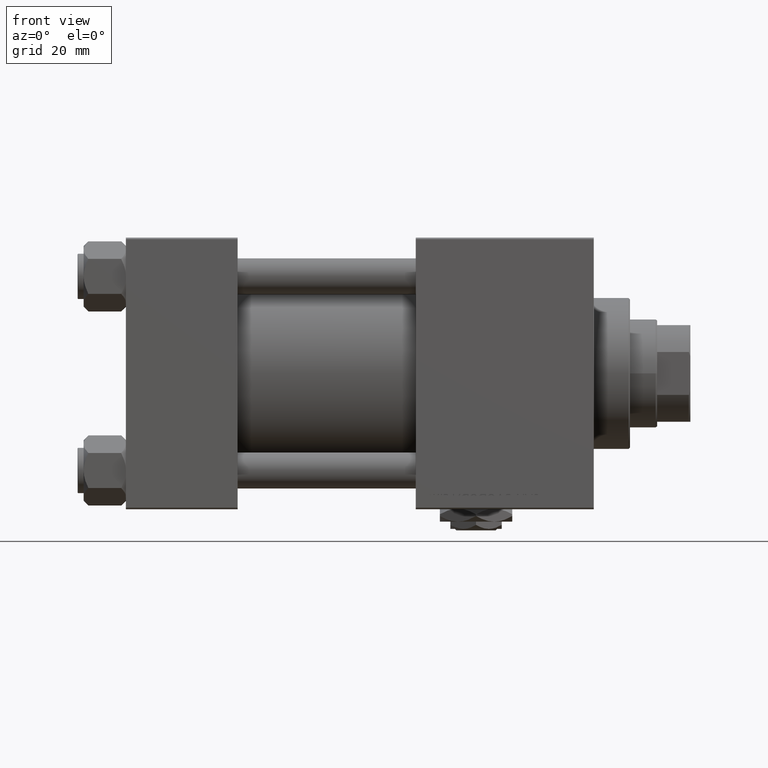
[diagram: clean part render]
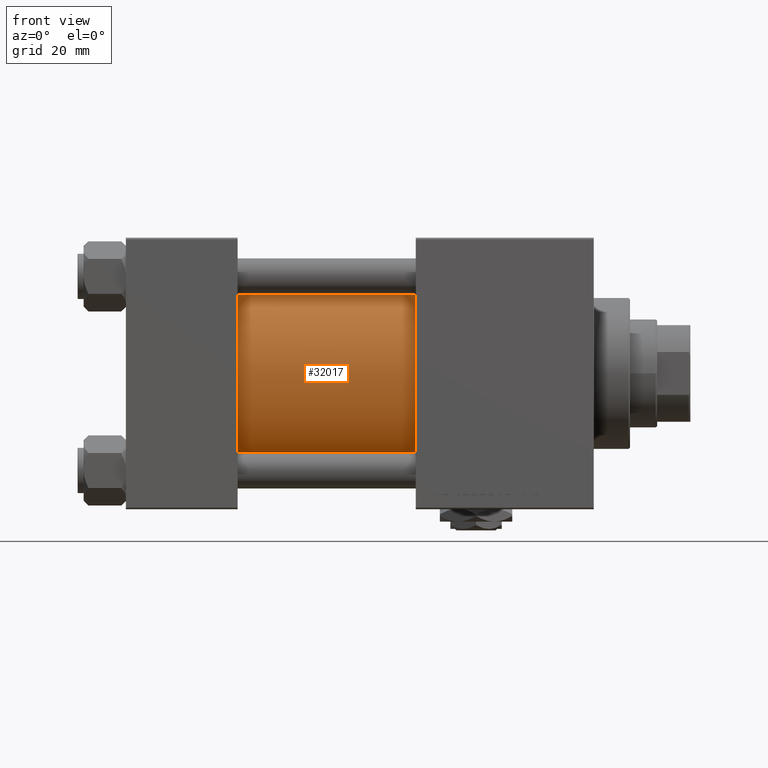
[diagram: same view with one face highlighted and labeled with its STEP entity id]
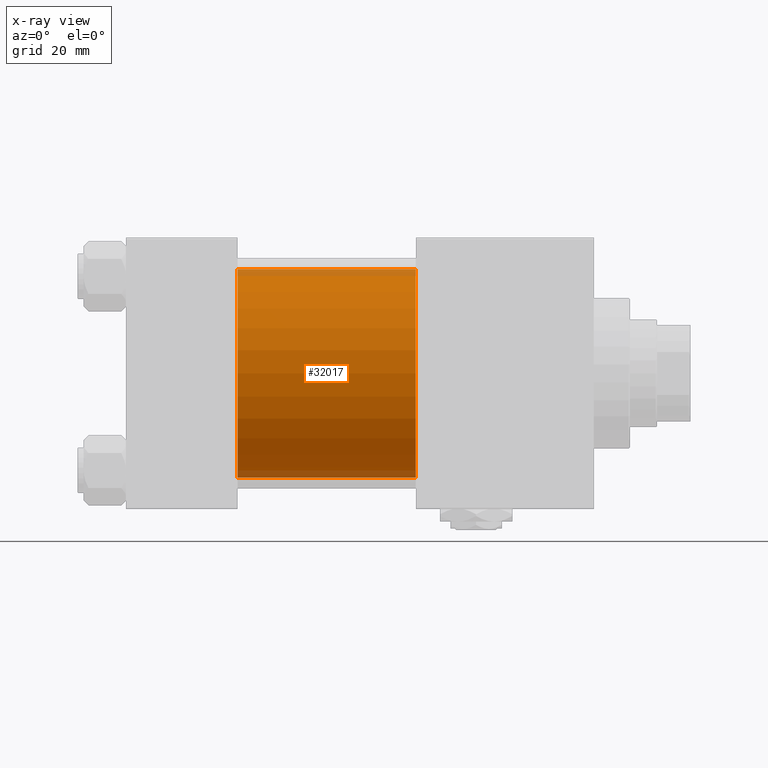
[diagram: x-ray of the same camera — body ghosted, the highlighted face saturated]
A machine part, front view. The second image highlights one B-rep face of the part: STEP entity #32017.
The next image is the same camera in x-ray: the body ghosted, the highlighted face saturated — about 7% of this face is hidden behind the body in this view.
In plain terms, the highlighted cylindrical surface (partial cylindrical patch) has radius 34.5 mm, axis along (-1, -0, -0).
Its self-contained STEP definition (entity closure, byte-faithful):
#1305 = EDGE_CURVE ( 'NONE', #40855, #13372, #7257, .T. ) ;
#2070 = AXIS2_PLACEMENT_3D ( 'NONE', #20995, #9957, #45665 ) ;
#2712 = CARTESIAN_POINT ( 'NONE',  ( 37.00000000000000000, 1.622946243093158675E-15, -34.50000000000000000 ) ) ;
#3217 = EDGE_CURVE ( 'NONE', #48868, #40855, #51545, .T. ) ;
#3789 = CARTESIAN_POINT ( 'NONE',  ( 96.00000000000000000, -2.602085213965210642E-15, 0.000000000000000000 ) ) ;
#5261 = CARTESIAN_POINT ( 'NONE',  ( 37.00000000000000000, -2.602085213965210642E-15, 0.000000000000000000 ) ) ;
#6742 = AXIS2_PLACEMENT_3D ( 'NONE', #5261, #45694, #10239 ) ;
#7257 = LINE ( 'NONE', #31407, #20417 ) ;
#7258 = CARTESIAN_POINT ( 'NONE',  ( 37.00000000000000000, -2.602085213965210642E-15, 34.50000000000000000 ) ) ;
#9187 = FACE_OUTER_BOUND ( 'NONE', #41483, .T. ) ;
#9957 = DIRECTION ( 'NONE',  ( -1.000000000000000000, -0.000000000000000000, -0.000000000000000000 ) ) ;
#10239 = DIRECTION ( 'NONE',  ( 0.000000000000000000, 0.000000000000000000, 1.000000000000000000 ) ) ;
#12954 = AXIS2_PLACEMENT_3D ( 'NONE', #3789, #51855, #47907 ) ;
#13372 = VERTEX_POINT ( 'NONE', #2712 ) ;
#15892 = ORIENTED_EDGE ( 'NONE', *, *, #1305, .F. ) ;
#18504 = CARTESIAN_POINT ( 'NONE',  ( 96.00000000000000000, -2.602085213965210642E-15, 34.50000000000000000 ) ) ;
#19349 = CIRCLE ( 'NONE', #6742, 34.50000000000000000 ) ;
#19938 = LINE ( 'NONE', #35436, #47398 ) ;
#20417 = VECTOR ( 'NONE', #51116, 1000.000000000000000 ) ;
#20995 = CARTESIAN_POINT ( 'NONE',  ( 96.00000000000000000, -2.602085213965210642E-15, 0.000000000000000000 ) ) ;
#23112 = ORIENTED_EDGE ( 'NONE', *, *, #48611, .T. ) ;
#25009 = VERTEX_POINT ( 'NONE', #7258 ) ;
#25269 = ORIENTED_EDGE ( 'NONE', *, *, #33019, .T. ) ;
#31407 = CARTESIAN_POINT ( 'NONE',  ( 96.00000000000000000, 1.622946243093158675E-15, -34.50000000000000000 ) ) ;
#32017 = ADVANCED_FACE ( 'NONE', ( #9187 ), #46176, .T. ) ;
#33019 = EDGE_CURVE ( 'NONE', #48868, #25009, #19938, .T. ) ;
#35436 = CARTESIAN_POINT ( 'NONE',  ( 96.00000000000000000, -2.602085213965210642E-15, 34.50000000000000000 ) ) ;
#40855 = VERTEX_POINT ( 'NONE', #50668 ) ;
#41483 = EDGE_LOOP ( 'NONE', ( #15892, #44254, #25269, #23112 ) ) ;
#44254 = ORIENTED_EDGE ( 'NONE', *, *, #3217, .F. ) ;
#45665 = DIRECTION ( 'NONE',  ( 0.000000000000000000, 0.000000000000000000, 1.000000000000000000 ) ) ;
#45694 = DIRECTION ( 'NONE',  ( 1.000000000000000000, -0.000000000000000000, 0.000000000000000000 ) ) ;
#46176 = CYLINDRICAL_SURFACE ( 'NONE', #2070, 34.50000000000000000 ) ;
#47245 = DIRECTION ( 'NONE',  ( -1.000000000000000000, -0.000000000000000000, -0.000000000000000000 ) ) ;
#47398 = VECTOR ( 'NONE', #47245, 1000.000000000000000 ) ;
#47907 = DIRECTION ( 'NONE',  ( 0.000000000000000000, 0.000000000000000000, -1.000000000000000000 ) ) ;
#48611 = EDGE_CURVE ( 'NONE', #25009, #13372, #19349, .T. ) ;
#48868 = VERTEX_POINT ( 'NONE', #18504 ) ;
#50668 = CARTESIAN_POINT ( 'NONE',  ( 96.00000000000000000, 1.622946243093158675E-15, -34.50000000000000000 ) ) ;
#51116 = DIRECTION ( 'NONE',  ( -1.000000000000000000, -0.000000000000000000, -0.000000000000000000 ) ) ;
#51545 = CIRCLE ( 'NONE', #12954, 34.50000000000000000 ) ;
#51855 = DIRECTION ( 'NONE',  ( 1.000000000000000000, 0.000000000000000000, 0.000000000000000000 ) ) ;